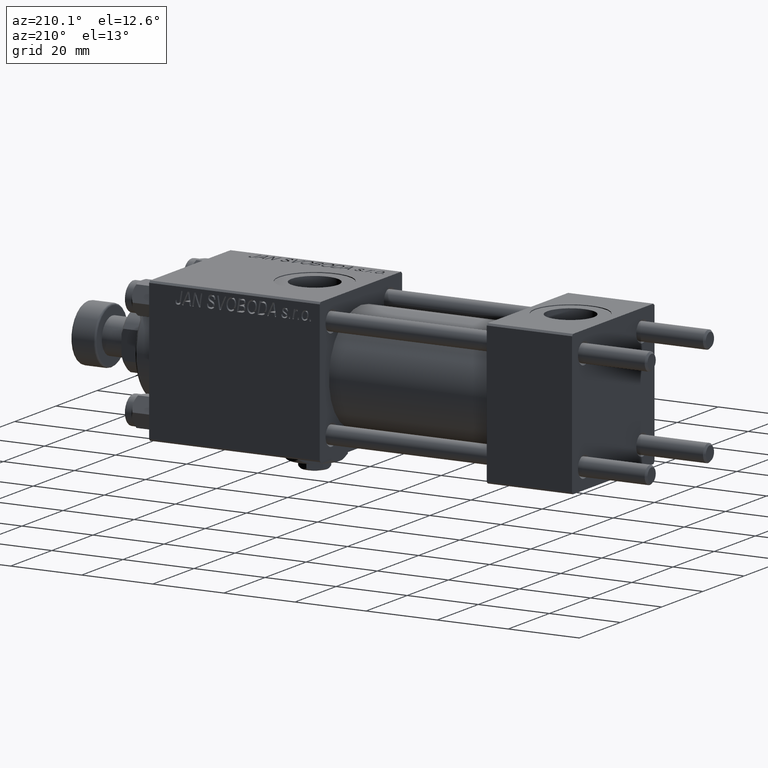
[diagram: clean part render]
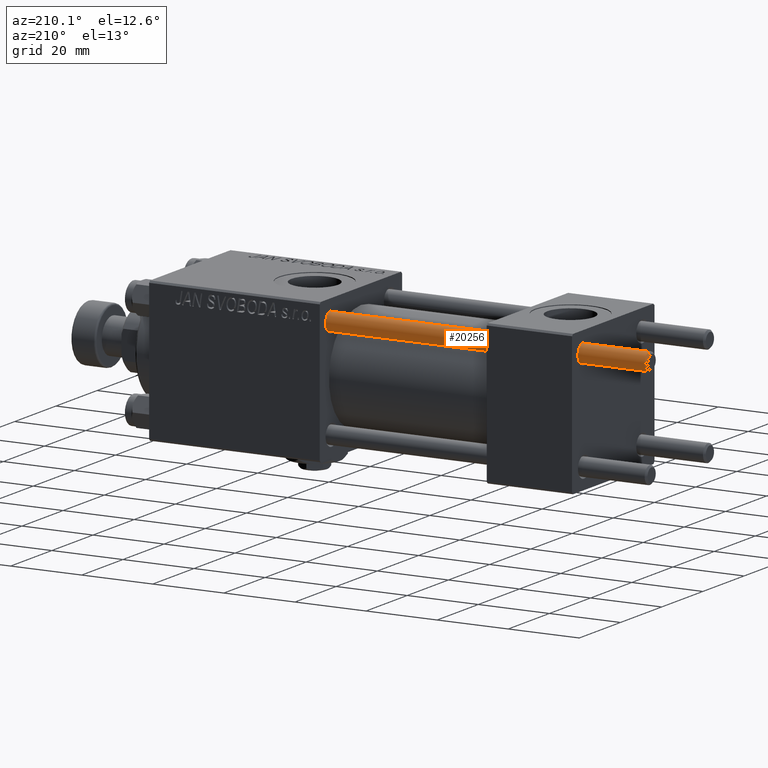
[diagram: same view with one face highlighted and labeled with its STEP entity id]
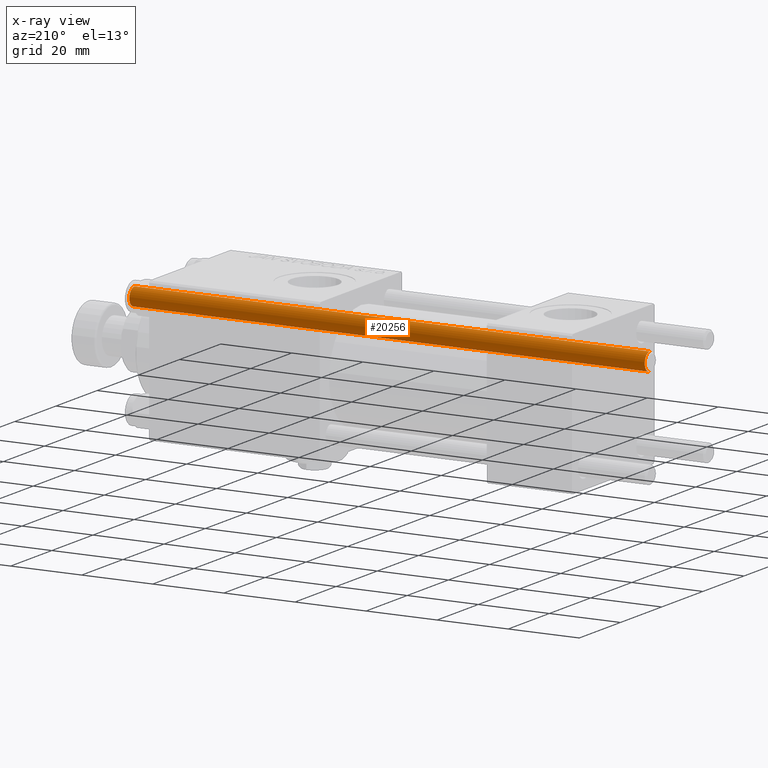
[diagram: x-ray of the same camera — body ghosted, the highlighted face saturated]
A machine part, auxiliary view. The second image highlights one B-rep face of the part: STEP entity #20256.
The next image is the same camera in x-ray: the body ghosted, the highlighted face saturated — about 0% of this face is hidden behind the body in this view.
In plain terms, the highlighted cylindrical surface (edge-blend (fillet) strip) has radius 2.5 mm, axis along (-1, -0, -0).
Its self-contained STEP definition (entity closure, byte-faithful):
#1177 = CARTESIAN_POINT ( 'NONE',  ( 2.500000000000000000, 3.061616997868383141E-16, 145.5000000000000284 ) ) ;
#1430 = CARTESIAN_POINT ( 'NONE',  ( 0.000000000000000000, 0.000000000000000000, 146.0000000000000000 ) ) ;
#3257 = CARTESIAN_POINT ( 'NONE',  ( 0.000000000000000000, 0.000000000000000000, 0.5000000000000559552 ) ) ;
#3881 = AXIS2_PLACEMENT_3D ( 'NONE', #49135, #4706, #36770 ) ;
#4706 = DIRECTION ( 'NONE',  ( 0.000000000000000000, 0.000000000000000000, -1.000000000000000000 ) ) ;
#5389 = CYLINDRICAL_SURFACE ( 'NONE', #50183, 2.500000000000000000 ) ;
#5744 = LINE ( 'NONE', #21776, #29356 ) ;
#6818 = VERTEX_POINT ( 'NONE', #47558 ) ;
#8863 = ORIENTED_EDGE ( 'NONE', *, *, #14167, .F. ) ;
#9583 = DIRECTION ( 'NONE',  ( -0.000000000000000000, -0.000000000000000000, -1.000000000000000000 ) ) ;
#10972 = CARTESIAN_POINT ( 'NONE',  ( -2.500000000000000000, 0.000000000000000000, 0.5000000000000559552 ) ) ;
#11261 = VERTEX_POINT ( 'NONE', #39259 ) ;
#11412 = DIRECTION ( 'NONE',  ( -0.000000000000000000, -0.000000000000000000, 1.000000000000000000 ) ) ;
#11442 = VECTOR ( 'NONE', #42530, 1000.000000000000000 ) ;
#13270 = FACE_OUTER_BOUND ( 'NONE', #42673, .T. ) ;
#14167 = EDGE_CURVE ( 'NONE', #11261, #43457, #33573, .T. ) ;
#15610 = DIRECTION ( 'NONE',  ( 1.000000000000000000, 0.000000000000000000, 0.000000000000000000 ) ) ;
#17701 = AXIS2_PLACEMENT_3D ( 'NONE', #3257, #11412, #15610 ) ;
#17784 = ORIENTED_EDGE ( 'NONE', *, *, #18313, .T. ) ;
#18313 = EDGE_CURVE ( 'NONE', #11261, #37043, #40792, .T. ) ;
#18557 = CIRCLE ( 'NONE', #17701, 2.500000000000000000 ) ;
#20256 = ADVANCED_FACE ( 'NONE', ( #13270 ), #5389, .T. ) ;
#21776 = CARTESIAN_POINT ( 'NONE',  ( 2.500000000000000000, 3.061616997868383141E-16, 146.0000000000000000 ) ) ;
#25615 = DIRECTION ( 'NONE',  ( -1.000000000000000000, 0.000000000000000000, 0.000000000000000000 ) ) ;
#26620 = EDGE_CURVE ( 'NONE', #37043, #6818, #5744, .T. ) ;
#29356 = VECTOR ( 'NONE', #33851, 1000.000000000000000 ) ;
#31783 = ORIENTED_EDGE ( 'NONE', *, *, #26620, .T. ) ;
#33573 = LINE ( 'NONE', #50169, #11442 ) ;
#33851 = DIRECTION ( 'NONE',  ( -0.000000000000000000, -0.000000000000000000, -1.000000000000000000 ) ) ;
#36770 = DIRECTION ( 'NONE',  ( 1.000000000000000000, 0.000000000000000000, 0.000000000000000000 ) ) ;
#37043 = VERTEX_POINT ( 'NONE', #1177 ) ;
#39259 = CARTESIAN_POINT ( 'NONE',  ( -2.500000000000000000, 0.000000000000000000, 145.5000000000000284 ) ) ;
#40792 = CIRCLE ( 'NONE', #3881, 2.500000000000000000 ) ;
#42530 = DIRECTION ( 'NONE',  ( -0.000000000000000000, -0.000000000000000000, -1.000000000000000000 ) ) ;
#42673 = EDGE_LOOP ( 'NONE', ( #17784, #31783, #51349, #8863 ) ) ;
#43457 = VERTEX_POINT ( 'NONE', #10972 ) ;
#47558 = CARTESIAN_POINT ( 'NONE',  ( 2.500000000000000000, 3.061616997868383141E-16, 0.5000000000000559552 ) ) ;
#49135 = CARTESIAN_POINT ( 'NONE',  ( 0.000000000000000000, 0.000000000000000000, 145.5000000000000284 ) ) ;
#49394 = EDGE_CURVE ( 'NONE', #6818, #43457, #18557, .T. ) ;
#50169 = CARTESIAN_POINT ( 'NONE',  ( -2.500000000000000000, 0.000000000000000000, 146.0000000000000000 ) ) ;
#50183 = AXIS2_PLACEMENT_3D ( 'NONE', #1430, #9583, #25615 ) ;
#51349 = ORIENTED_EDGE ( 'NONE', *, *, #49394, .T. ) ;